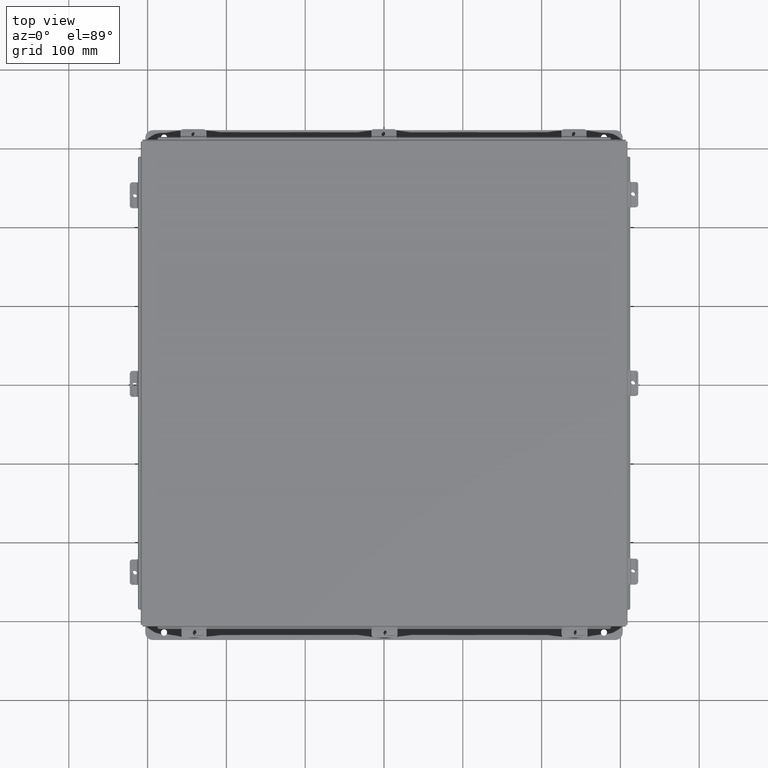
[diagram: clean part render]
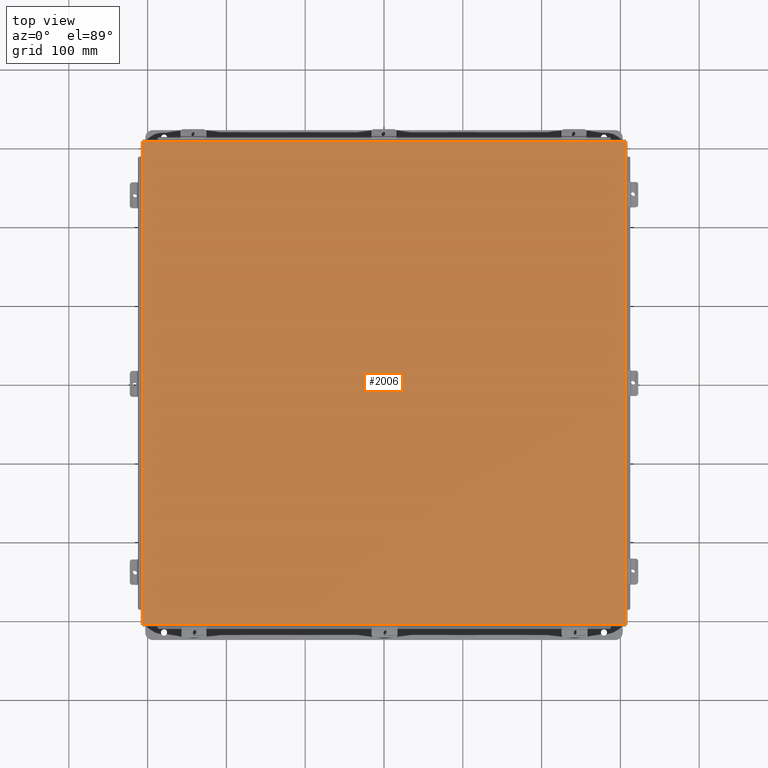
[diagram: same view with one face highlighted and labeled with its STEP entity id]
A machine part, top view. The second image highlights one B-rep face of the part: STEP entity #2006.
In plain terms, the highlighted planar face has unit normal (-0, -0, 1).
Its self-contained STEP definition (entity closure, byte-faithful):
#64 = FACE_OUTER_BOUND ( 'NONE', #3452, .T. ) ;
#355 = EDGE_CURVE ( 'NONE', #6746, #6366, #5977, .T. ) ;
#495 = EDGE_CURVE ( 'NONE', #2520, #1088, #6853, .T. ) ;
#1088 = VERTEX_POINT ( 'NONE', #6944 ) ;
#1335 = CARTESIAN_POINT ( 'NONE',  ( -12.06855000000003200, 12.06854999999999700, -0.07469999999999797600 ) ) ;
#1591 = DIRECTION ( 'NONE',  ( -1.000000000000000000, -3.205297876175392200E-030, -8.208677865576288000E-017 ) ) ;
#1863 = CARTESIAN_POINT ( 'NONE',  ( 12.07447893218816800, -12.06855000000000200, -0.07470000000000015500 ) ) ;
#2006 = ADVANCED_FACE ( 'NONE', ( #64 ), #7541, .T. ) ;
#2236 = ORIENTED_EDGE ( 'NONE', *, *, #8853, .T. ) ;
#2423 = CARTESIAN_POINT ( 'NONE',  ( -12.06855000000003200, -12.07447893218813600, -0.07470000000000015500 ) ) ;
#2458 = VECTOR ( 'NONE', #7872, 39.37007874015748100 ) ;
#2520 = VERTEX_POINT ( 'NONE', #9760 ) ;
#2632 = LINE ( 'NONE', #1863, #8824 ) ;
#3033 = LINE ( 'NONE', #3573, #8946 ) ;
#3180 = VECTOR ( 'NONE', #4889, 39.37007874015748100 ) ;
#3330 = AXIS2_PLACEMENT_3D ( 'NONE', #4683, #8684, #9800 ) ;
#3452 = EDGE_LOOP ( 'NONE', ( #2236, #8238, #7559, #6265 ) ) ;
#3573 = CARTESIAN_POINT ( 'NONE',  ( -12.07447893218816800, 12.06854999999999700, -0.07469999999999797600 ) ) ;
#3637 = DIRECTION ( 'NONE',  ( 1.000000000000000000, 3.399216270243118900E-030, -8.208677865577550200E-017 ) ) ;
#4683 = CARTESIAN_POINT ( 'NONE',  ( 0.0000000000000000000, 0.0000000000000000000, -0.07470000000000015500 ) ) ;
#4889 = DIRECTION ( 'NONE',  ( -3.166671605124525800E-030, -1.000000000000000000, -1.853823127269377700E-029 ) ) ;
#5977 = LINE ( 'NONE', #2423, #2458 ) ;
#6265 = ORIENTED_EDGE ( 'NONE', *, *, #355, .T. ) ;
#6366 = VERTEX_POINT ( 'NONE', #1335 ) ;
#6746 = VERTEX_POINT ( 'NONE', #7823 ) ;
#6853 = LINE ( 'NONE', #7668, #3180 ) ;
#6944 = CARTESIAN_POINT ( 'NONE',  ( 12.06855000000003600, -12.06855000000000200, -0.07470000000000015500 ) ) ;
#7541 = PLANE ( 'NONE',  #3330 ) ;
#7559 = ORIENTED_EDGE ( 'NONE', *, *, #9767, .T. ) ;
#7668 = CARTESIAN_POINT ( 'NONE',  ( 12.06855000000003600, 12.07447893218813200, -0.07470000000000015500 ) ) ;
#7823 = CARTESIAN_POINT ( 'NONE',  ( -12.06855000000003200, -12.06855000000000200, -0.07470000000000015500 ) ) ;
#7872 = DIRECTION ( 'NONE',  ( 3.166671605124525800E-030, 1.000000000000000000, 1.853823127269377700E-029 ) ) ;
#8238 = ORIENTED_EDGE ( 'NONE', *, *, #495, .T. ) ;
#8684 = DIRECTION ( 'NONE',  ( 5.938065620492508100E-059, -1.846427556282924300E-029, -1.000000000000000000 ) ) ;
#8824 = VECTOR ( 'NONE', #1591, 39.37007874015748100 ) ;
#8853 = EDGE_CURVE ( 'NONE', #6366, #2520, #3033, .T. ) ;
#8946 = VECTOR ( 'NONE', #3637, 39.37007874015748100 ) ;
#9760 = CARTESIAN_POINT ( 'NONE',  ( 12.06855000000003600, 12.06854999999999300, -0.07470000000000015500 ) ) ;
#9767 = EDGE_CURVE ( 'NONE', #1088, #6746, #2632, .T. ) ;
#9800 = DIRECTION ( 'NONE',  ( -1.000000000000000000, -3.215975411700707400E-030, 0.0000000000000000000 ) ) ;